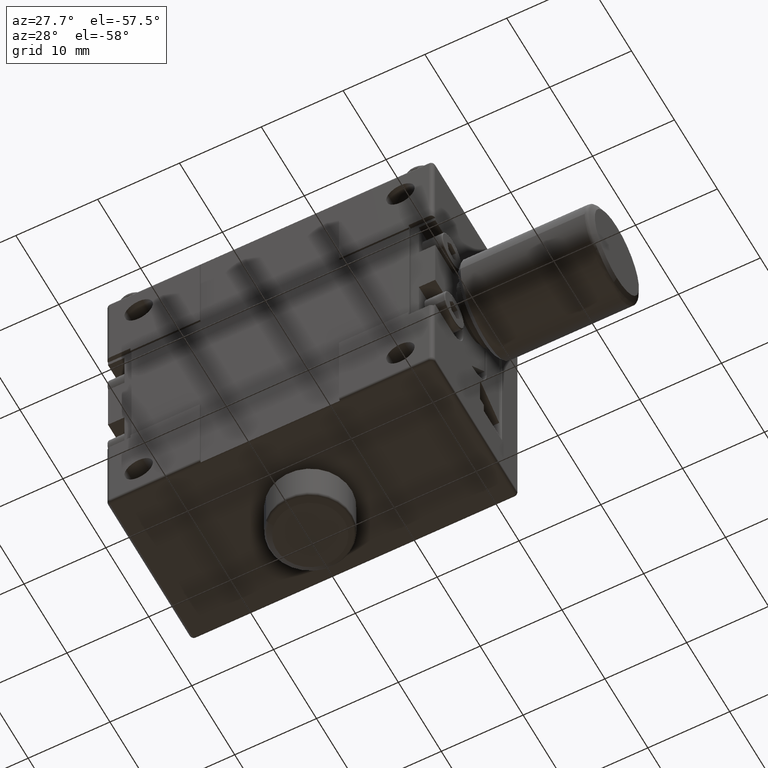
[diagram: clean part render]
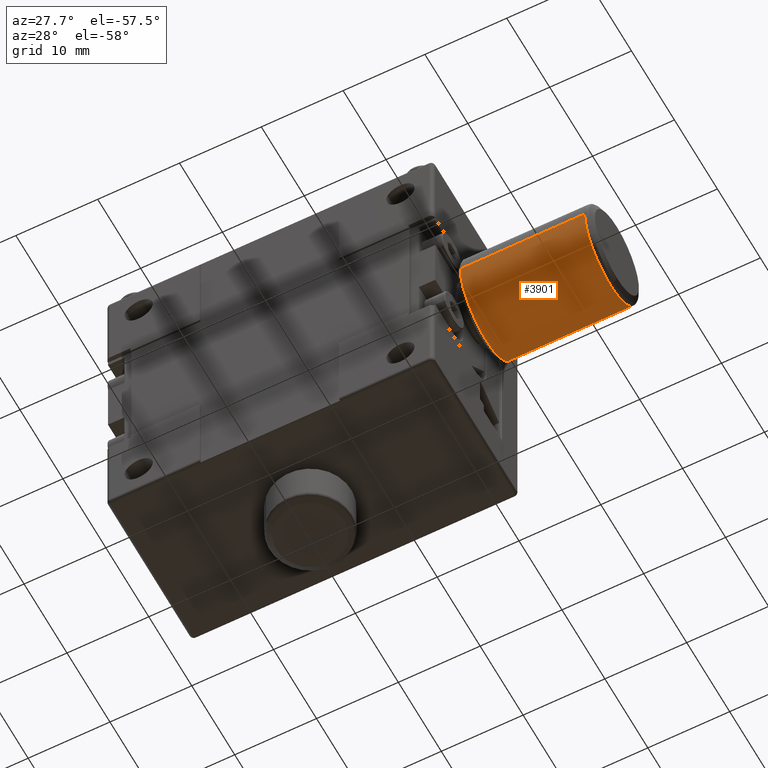
[diagram: same view with one face highlighted and labeled with its STEP entity id]
A machine part, auxiliary view. The second image highlights one B-rep face of the part: STEP entity #3901.
In plain terms, the highlighted cylindrical surface (partial cylindrical patch) has radius 6 mm, axis along (-1, 0, 0).
Its self-contained STEP definition (entity closure, byte-faithful):
#69 = EDGE_CURVE ( 'NONE', #17633, #4131, #19500, .T. ) ;
#953 = AXIS2_PLACEMENT_3D ( 'NONE', #16140, #9864, #12054 ) ;
#1746 = LINE ( 'NONE', #2320, #24250 ) ;
#1817 = CARTESIAN_POINT ( 'NONE',  ( 13.03053974895816047, 22.50000000000000000, -2.168404344971010051E-15 ) ) ;
#2303 = ORIENTED_EDGE ( 'NONE', *, *, #69, .T. ) ;
#2320 = CARTESIAN_POINT ( 'NONE',  ( 13.03053974895816047, 34.50000000000000000, -1.433616265482596007E-15 ) ) ;
#2991 = VERTEX_POINT ( 'NONE', #22193 ) ;
#3602 = CARTESIAN_POINT ( 'NONE',  ( 37.21132486540514606, 28.50000000000000000, -6.000000000000000000 ) ) ;
#3752 = CARTESIAN_POINT ( 'NONE',  ( 37.21132486540514606, 28.50000000000000000, -2.168404344971010051E-15 ) ) ;
#3901 = ADVANCED_FACE ( 'NONE', ( #21240 ), #22996, .T. ) ;
#4131 = VERTEX_POINT ( 'NONE', #13174 ) ;
#5380 = CIRCLE ( 'NONE', #22648, 6.000000000000000000 ) ;
#5980 = CIRCLE ( 'NONE', #22305, 6.000000000000000000 ) ;
#7532 = VECTOR ( 'NONE', #28417, 1000.000000000000000 ) ;
#7655 = EDGE_LOOP ( 'NONE', ( #22659, #20270, #20615, #2303, #22351 ) ) ;
#8009 = EDGE_CURVE ( 'NONE', #17633, #27720, #5980, .T. ) ;
#9864 = DIRECTION ( 'NONE',  ( 1.000000000000000000, 0.000000000000000000, 0.000000000000000000 ) ) ;
#12054 = DIRECTION ( 'NONE',  ( 0.000000000000000000, 1.000000000000000000, 0.000000000000000000 ) ) ;
#12462 = DIRECTION ( 'NONE',  ( -1.000000000000000000, 0.000000000000000000, 0.000000000000000000 ) ) ;
#12973 = EDGE_CURVE ( 'NONE', #4131, #2991, #27089, .T. ) ;
#12986 = DIRECTION ( 'NONE',  ( -1.000000000000000000, -6.212580450732298775E-17, 0.000000000000000000 ) ) ;
#13174 = CARTESIAN_POINT ( 'NONE',  ( 22.00000000000000000, 22.50000000000000000, -2.168404344971010051E-15 ) ) ;
#15295 = EDGE_CURVE ( 'NONE', #19985, #2991, #1746, .T. ) ;
#16140 = CARTESIAN_POINT ( 'NONE',  ( 22.00000000000000000, 28.50000000000000000, -2.168404344971010051E-15 ) ) ;
#17633 = VERTEX_POINT ( 'NONE', #18097 ) ;
#17845 = EDGE_CURVE ( 'NONE', #27720, #19985, #5380, .T. ) ;
#18097 = CARTESIAN_POINT ( 'NONE',  ( 37.21132486540514606, 22.50000000000000000, -2.168404344971010051E-15 ) ) ;
#18613 = DIRECTION ( 'NONE',  ( 0.000000000000000000, -1.000000000000000000, 0.000000000000000000 ) ) ;
#18811 = DIRECTION ( 'NONE',  ( 1.000000000000000000, 0.000000000000000000, 0.000000000000000000 ) ) ;
#19500 = LINE ( 'NONE', #1817, #7532 ) ;
#19985 = VERTEX_POINT ( 'NONE', #25965 ) ;
#20270 = ORIENTED_EDGE ( 'NONE', *, *, #17845, .F. ) ;
#20615 = ORIENTED_EDGE ( 'NONE', *, *, #8009, .F. ) ;
#21240 = FACE_OUTER_BOUND ( 'NONE', #7655, .T. ) ;
#21311 = DIRECTION ( 'NONE',  ( 0.000000000000000000, 0.000000000000000000, -1.000000000000000000 ) ) ;
#22193 = CARTESIAN_POINT ( 'NONE',  ( 22.00000000000000000, 34.50000000000000000, -1.433616265482596007E-15 ) ) ;
#22305 = AXIS2_PLACEMENT_3D ( 'NONE', #3752, #18811, #25952 ) ;
#22351 = ORIENTED_EDGE ( 'NONE', *, *, #12973, .T. ) ;
#22648 = AXIS2_PLACEMENT_3D ( 'NONE', #23643, #26114, #21311 ) ;
#22659 = ORIENTED_EDGE ( 'NONE', *, *, #15295, .F. ) ;
#22996 = CYLINDRICAL_SURFACE ( 'NONE', #27654, 6.000000000000001776 ) ;
#23643 = CARTESIAN_POINT ( 'NONE',  ( 37.21132486540514606, 28.50000000000000000, -2.168404344971010051E-15 ) ) ;
#24250 = VECTOR ( 'NONE', #12986, 1000.000000000000000 ) ;
#25952 = DIRECTION ( 'NONE',  ( 0.000000000000000000, 0.000000000000000000, -1.000000000000000000 ) ) ;
#25965 = CARTESIAN_POINT ( 'NONE',  ( 37.21132486540514606, 34.50000000000000000, -1.433616265482596007E-15 ) ) ;
#26114 = DIRECTION ( 'NONE',  ( 1.000000000000000000, 0.000000000000000000, 0.000000000000000000 ) ) ;
#27089 = CIRCLE ( 'NONE', #953, 6.000000000000001776 ) ;
#27654 = AXIS2_PLACEMENT_3D ( 'NONE', #27673, #12462, #18613 ) ;
#27673 = CARTESIAN_POINT ( 'NONE',  ( 13.03053974895816047, 28.50000000000000000, -2.168404344971010051E-15 ) ) ;
#27720 = VERTEX_POINT ( 'NONE', #3602 ) ;
#28417 = DIRECTION ( 'NONE',  ( -1.000000000000000000, -6.212580450732298775E-17, 0.000000000000000000 ) ) ;